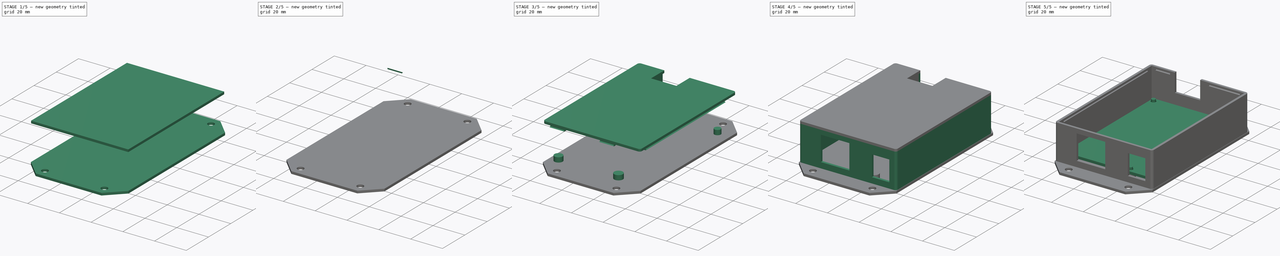
[diagram: build sequence overview — one tinted view per stage of 5, left to right]
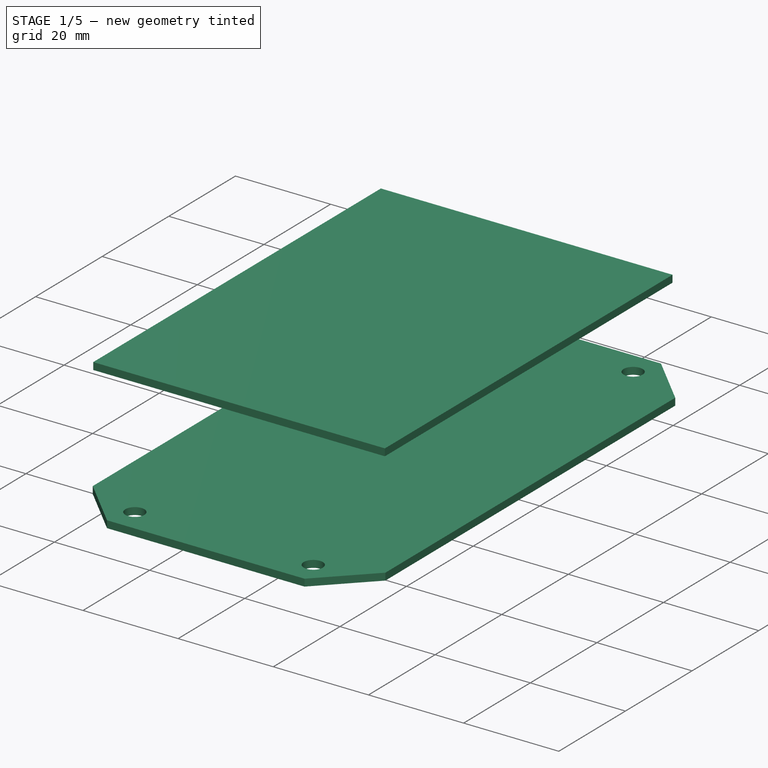
[diagram: stage 1 of 5 — iso view after this stage's code; geometry added in this stage tinted green]
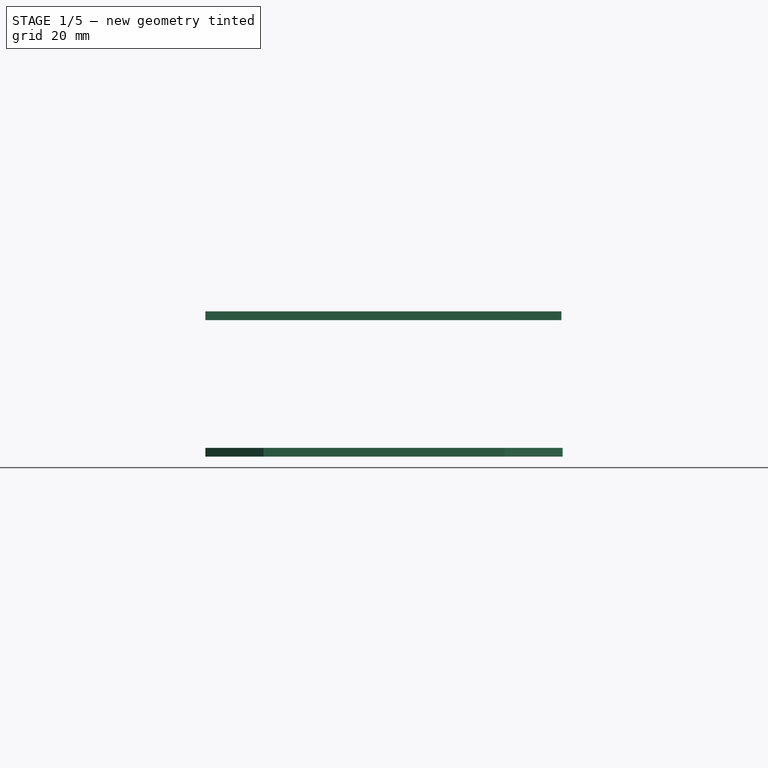
[diagram: stage 1 of 5 — front view after this stage's code; geometry added in this stage tinted green]
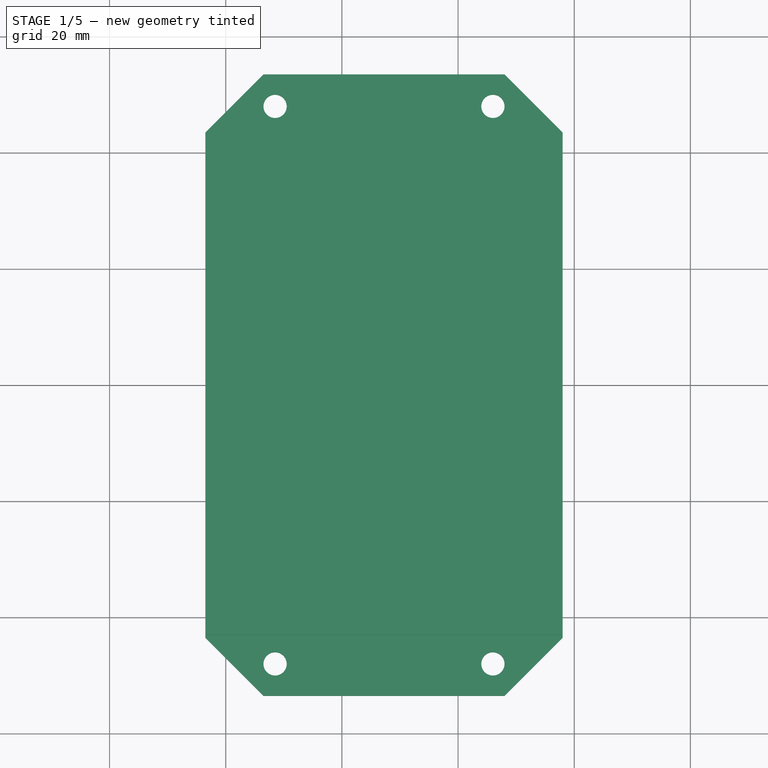
[diagram: stage 1 of 5 — top view after this stage's code; geometry added in this stage tinted green]
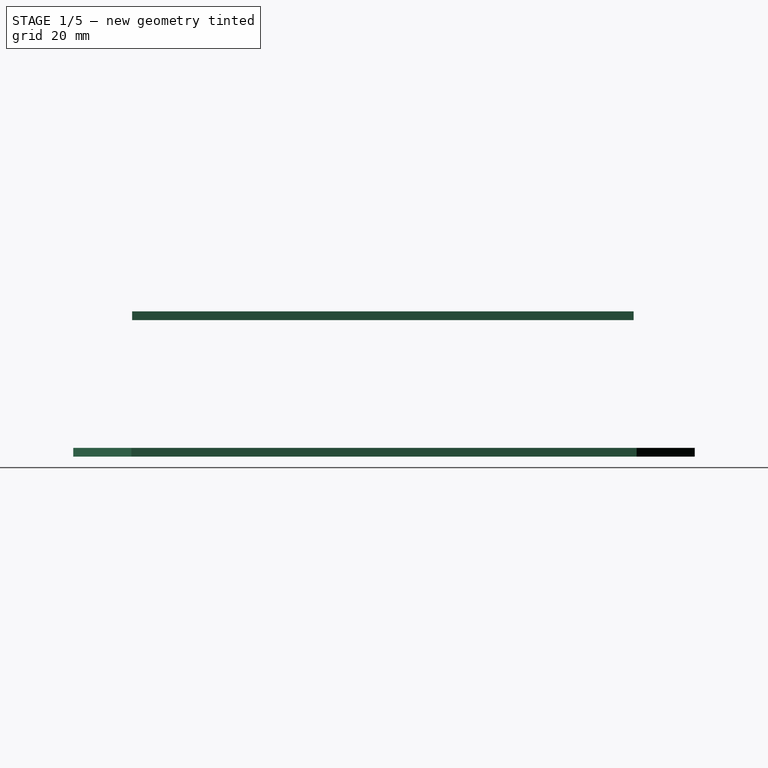
[diagram: stage 1 of 5 — right view after this stage's code; geometry added in this stage tinted green]
FCSTD DOCUMENT  (FreeCAD 0.16R4928 (Git))
Label: Notifier_RelayV1
License: CC-BY 3.0
LicenseURL: http://creativecommons.org/licenses/by/3.0/
objects: Sketcher::SketchObject×14, PartDesign::Pad×6, Part::Sweep×6, Part::Box×5, Part::MultiFuse×4, Part::Cut×3, PartDesign::Pocket×2, Part::Offset×2, App::DocumentObjectGroup×1, Part::Thickness×1, Part::Part2DObjectPython×1, PartDesign::Fillet×1, PartDesign::Chamfer×1
note: 54 computed .brp shape members not serialized (recipe doc carries the construction recipe); baked Part::Feature solids carry a one-line shape summary decoded from their .brp

FEATURE [Sketcher::SketchObject] Sketch001
  sketch-geometry (4):
    g0: LineSegment StartX=-2 StartY=-1.85263 StartZ=0 EndX=56.2937 EndY=-1.85263 EndZ=0
    g1: LineSegment StartX=56.2937 StartY=-1.85263 StartZ=0 EndX=56.2937 EndY=81.4827 EndZ=0
    g2: LineSegment StartX=56.2937 StartY=81.4827 StartZ=0 EndX=-2 EndY=81.4827 EndZ=0
    g3: LineSegment StartX=-2 StartY=81.4827 StartZ=0 EndX=-2 EndY=-1.85263 EndZ=0
  constraints (9):
    c: Coincident(g0,g1)
    c: Coincident(g1,g2)
    c: Coincident(g2,g3)
    c: Coincident(g3,g0)
    c: Horizontal(g0)
    c: Horizontal(g2)
    c: Vertical(g1)
    c: Vertical(g3)
    c: Distance(g-1,g3) = 2
FEATURE [PartDesign::Pad] Pad
  Length = 22
  Length2 = 100
  Sketch = -> Sketch001
  Type = 0
FEATURE [Part::Thickness] Thickness
  Faces = -> Pad [Face6]
  Intersection = false
  Join = 0
  Mode = 0
  SelfIntersection = false
  Value = 1.5
FEATURE [Sketcher::SketchObject] Sketch002
  ExternalGeometry = -> [Thickness]
  Placement = pos=(0,0,22) rot=(0,0,1;0rad)
  Support = -> Thickness [Face6]
  sketch-geometry (4):
    g0: LineSegment StartX=-3.5 StartY=82.9827 StartZ=0 EndX=57.7937 EndY=82.9827 EndZ=0
    g1: LineSegment StartX=57.7937 StartY=82.9827 StartZ=0 EndX=57.7937 EndY=-3.35263 EndZ=0
    g2: LineSegment StartX=57.7937 StartY=-3.35263 StartZ=0 EndX=-3.5 EndY=-3.35263 EndZ=0
    g3: LineSegment StartX=-3.5 StartY=-3.35263 StartZ=0 EndX=-3.5 EndY=82.9827 EndZ=0
  constraints (12):
    c: Coincident(g0,g1)
    c: Coincident(g1,g2)
    c: Coincident(g2,g3)
    c: Coincident(g3,g0)
    c: Horizontal(g0)
    c: Horizontal(g2)
    c: Vertical(g1)
    c: Vertical(g3)
    c: DistanceY(g0,g-3) = 0
    c: DistanceY(g1,g-5) = 0
    c: DistanceX(g2,g-6) = 0
    c: DistanceX(g0,g-4) = 0
FEATURE [Part::Part2DObjectPython] Clone2D  label="Clone of Sketch002 (2D)"  # Draft 2D object (typed FeaturePython)
  Objects = -> [Sketch002]
  Placement = pos=(0,0,22) rot=(0,0,1;0rad)
  Scale = (1,1,1)
FEATURE [PartDesign::Pad] Pad001
  Length = 1.5
  Length2 = 100
  Placement = pos=(0,0,22) rot=(0,0,1;0rad)
  Sketch = -> Clone2D
  Type = 0
FEATURE [Part::Box] Box004  label="Cube"
  Height = 1.5
  Length = 61.5
  Placement = pos=(-3.5,-13.5,-1.5) rot=(0,0,1;0rad)
  Width = 107
FEATURE [PartDesign::Chamfer] Chamfer
  Base = -> Box004 [Edge1,Edge3,Edge7,Edge5]
  Placement = pos=(-3.5,-13.5,-1.5) rot=(0,0,1;0rad)
  Size = 10
FEATURE [Sketcher::SketchObject] Sketch013
  ExternalGeometry = -> [Chamfer]
  Placement = pos=(-3.5,-13.5,0) rot=(0,0,1;0rad)
  Support = -> Chamfer [Face2]
  sketch-geometry (4):
    g0: Circle CenterX=12 CenterY=101.5 CenterZ=0 NormalX=0 NormalY=0 NormalZ=1 Radius=2
    g1: Circle CenterX=49.5 CenterY=101.5 CenterZ=0 NormalX=0 NormalY=0 NormalZ=1 Radius=2
    g2: Circle CenterX=12 CenterY=5.5 CenterZ=0 NormalX=0 NormalY=0 NormalZ=1 Radius=2
    g3: Circle CenterX=49.5 CenterY=5.5 CenterZ=0 NormalX=0 NormalY=0 NormalZ=1 Radius=2
  constraints (12):
    c: Radius(g2) = 2
    c: Equal(g2,g3)
    c: Equal(g3,g1)
    c: Equal(g1,g0)
    c: DistanceX(g-5,g0) = 2
    c: DistanceY(g0,g-5) = 5.5
    c: DistanceX(g1,g-5) = 2
    c: DistanceY(g1,g-5) = 5.5
    c: DistanceY(g2,g-3) = -5.5
    c: DistanceX(g2,g-3) = -2
    c: DistanceX(g3,g-4) = 2
    c: DistanceY(g3,g-4) = -5.5
FEATURE [PartDesign::Pocket] Pocket001
  Length = 5
  Placement = pos=(-3.5,-13.5,-1.5) rot=(0,0,1;0rad)
  Sketch = -> Sketch013
  Type = 0
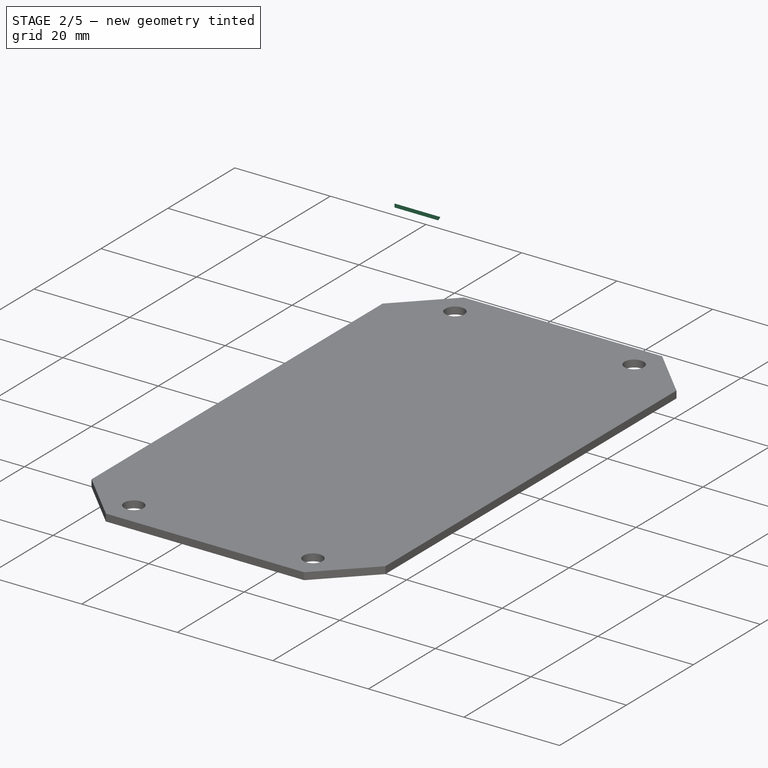
[diagram: stage 2 of 5 — iso view after this stage's code; geometry added in this stage tinted green]
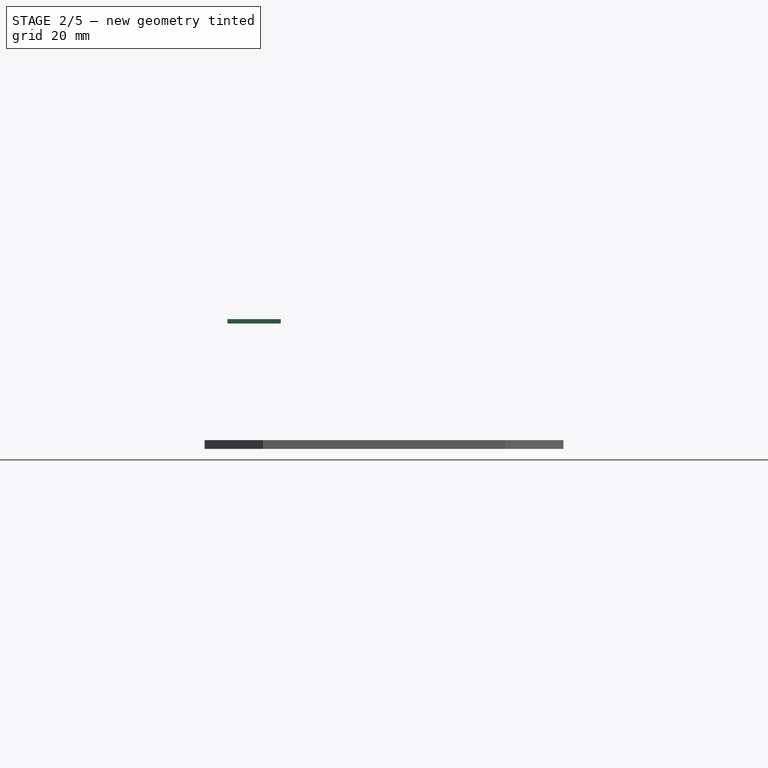
[diagram: stage 2 of 5 — front view after this stage's code; geometry added in this stage tinted green]
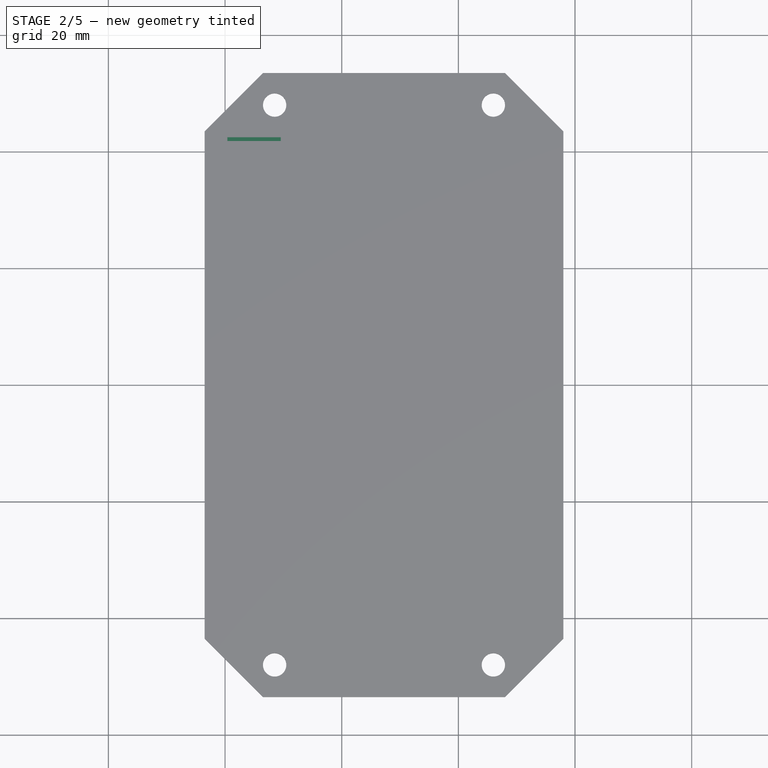
[diagram: stage 2 of 5 — top view after this stage's code; geometry added in this stage tinted green]
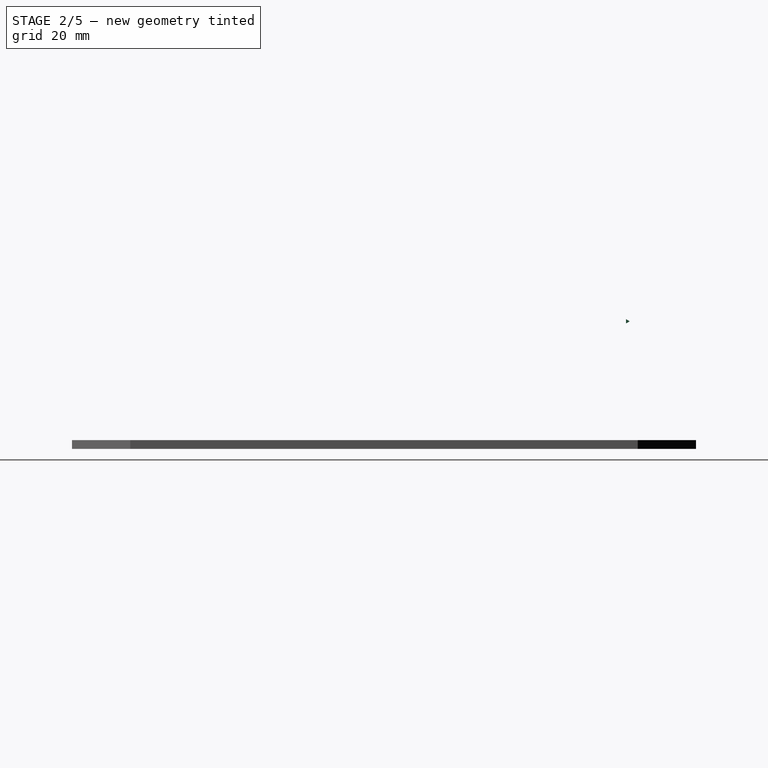
[diagram: stage 2 of 5 — right view after this stage's code; geometry added in this stage tinted green]
FEATURE [Part::Box] Box  label="Relay"
  Height = 15
  Length = 16
  Placement = pos=(12.5,71,10.5) rot=(0,0,1;0rad)
  Width = 15
FEATURE [PartDesign::Fillet] Fillet
  Base = -> Pad001 [Edge5,Edge8,Edge1,Edge2]
  Placement = pos=(0,0,22) rot=(0,0,1;0rad)
  Radius = 1.5
FEATURE [Part::Cut] Cut
  Base = -> Fillet
  Tool = -> Box
FEATURE [Sketcher::SketchObject] Sketch003
  ExternalGeometry = -> [Cut]
  Placement = pos=(0,0,22) rot=(1,0,0;3.14159rad)
  Support = -> Cut [Face2]
  sketch-geometry (8):
    g0: LineSegment StartX=12.5 StartY=-81.4827 StartZ=0 EndX=11 EndY=-81.4827 EndZ=0
    g1: LineSegment StartX=11 StartY=-81.4827 StartZ=0 EndX=11 EndY=-69.5 EndZ=0
    g2: LineSegment StartX=11 StartY=-69.5 StartZ=0 EndX=30 EndY=-69.5 EndZ=0
    g3: LineSegment StartX=30 StartY=-69.5 StartZ=0 EndX=30 EndY=-81.4827 EndZ=0
    g4: LineSegment StartX=30 StartY=-81.4827 StartZ=0 EndX=28.5 EndY=-81.4827 EndZ=0
    g5: LineSegment StartX=28.5 StartY=-81.4827 StartZ=0 EndX=28.5 EndY=-71 EndZ=0
    g6: LineSegment StartX=28.5 StartY=-71 StartZ=0 EndX=12.5 EndY=-71 EndZ=0
    g7: LineSegment StartX=12.5 StartY=-71 StartZ=0 EndX=12.5 EndY=-81.4827 EndZ=0
  constraints (23):
    c: Coincident(g0,g1)
    c: Coincident(g1,g2)
    c: Horizontal(g2)
    c: Coincident(g2,g3)
    c: Coincident(g3,g4)
    c: Coincident(g4,g5)
    c: Vertical(g5)
    c: Coincident(g5,g6)
    c: Horizontal(g6)
    c: Coincident(g6,g7)
    c: Coincident(g7,g0)
    c: Horizontal(g0)
    c: Horizontal(g4)
    c: Vertical(g1)
    c: Vertical(g7)
    c: Vertical(g3)
    c: Coincident(g5,g-5)
    c: Coincident(g6,g-4)
    c: DistanceX(g1,g6) = 1.5
    c: DistanceX(g2,g5) = -1.5
    c: DistanceY(g1,g6) = -1.5
    c: DistanceY(g0,g-6) = -1.5
    c: DistanceY(g4,g-7) = -1.5
FEATURE [PartDesign::Pad] Pad002  label="Lid"
  Length = 10
  Length2 = 100
  Sketch = -> Sketch003
  Type = 0
FEATURE [Sketcher::SketchObject] Sketch006
  ExternalGeometry = -> [Pad002]
  Placement = pos=(0,0,22) rot=(1,0,0;3.14159rad)
  Support = -> Pad002 [Face7]
  sketch-geometry (24):
    g0: LineSegment StartX=-2 StartY=-2.42337 StartZ=0 EndX=-0.5 EndY=-2.42337 EndZ=0
    g1: LineSegment StartX=-0.5 StartY=-2.42337 StartZ=0 EndX=-0.5 EndY=-78.1751 EndZ=0
    g2: LineSegment StartX=-0.5 StartY=-78.1751 StartZ=0 EndX=-2 EndY=-78.1751 EndZ=0
    g3: LineSegment StartX=-2 StartY=-78.1751 StartZ=0 EndX=-2 EndY=-2.42337 EndZ=0
    g4: LineSegment StartX=54.7937 StartY=-3.4831 StartZ=0 EndX=56.2937 EndY=-3.4831 EndZ=0
    g5: LineSegment StartX=56.2937 StartY=-3.4831 StartZ=0 EndX=56.2937 EndY=-74.6724 EndZ=0
    g6: LineSegment StartX=56.2937 StartY=-74.6724 StartZ=0 EndX=54.7937 EndY=-74.6724 EndZ=0
    g7: LineSegment StartX=54.7937 StartY=-74.6724 StartZ=0 EndX=54.7937 EndY=-3.4831 EndZ=0
    g8: LineSegment StartX=-0.008045 StartY=0.352633 StartZ=0 EndX=8.87508 EndY=0.352633 EndZ=0
    g9: LineSegment StartX=8.87508 StartY=0.352633 StartZ=0 EndX=8.87508 EndY=1.85263 EndZ=0
    g10: LineSegment StartX=8.87508 StartY=1.85263 StartZ=0 EndX=-0.008045 EndY=1.85263 EndZ=0
    g11: LineSegment StartX=-0.008045 StartY=1.85263 StartZ=0 EndX=-0.008045 EndY=0.352633 EndZ=0
    g12: LineSegment StartX=31.311 StartY=1.85263 StartZ=0 EndX=40.2021 EndY=1.85263 EndZ=0
    g13: LineSegment StartX=40.2021 StartY=1.85263 StartZ=0 EndX=40.2021 EndY=0.352633 EndZ=0
    g14: LineSegment StartX=40.2021 StartY=0.352633 StartZ=0 EndX=31.311 EndY=0.352633 EndZ=0
    g15: LineSegment StartX=31.311 StartY=0.352633 StartZ=0 EndX=31.311 EndY=1.85263 EndZ=0
    g16: LineSegment StartX=33.9258 StartY=-81.4827 StartZ=0 EndX=53.4522 EndY=-81.4827 EndZ=0
    g17: LineSegment StartX=53.4522 StartY=-81.4827 StartZ=0 EndX=53.4522 EndY=-79.9827 EndZ=0
    g18: LineSegment StartX=53.4522 StartY=-79.9827 StartZ=0 EndX=33.9258 EndY=-79.9827 EndZ=0
    g19: LineSegment StartX=33.9258 StartY=-79.9827 StartZ=0 EndX=33.9258 EndY=-81.4827 EndZ=0
    g20: LineSegment StartX=0.401153 StartY=-81.4827 StartZ=0 EndX=9.54535 EndY=-81.4827 EndZ=0
    g21: LineSegment StartX=9.54535 StartY=-81.4827 StartZ=0 EndX=9.54535 EndY=-79.9827 EndZ=0
    g22: LineSegment StartX=9.54535 StartY=-79.9827 StartZ=0 EndX=0.401153 EndY=-79.9827 EndZ=0
    g23: LineSegment StartX=0.401153 StartY=-79.9827 StartZ=0 EndX=0.401153 EndY=-81.4827 EndZ=0
  constraints (61):
    c: Coincident(g0,g1)
    c: Coincident(g1,g2)
    c: Coincident(g2,g3)
    c: Coincident(g3,g0)
    c: Horizontal(g0)
    c: Horizontal(g2)
    c: Vertical(g1)
    c: Vertical(g3)
    c: Coincident(g4,g5)
    c: Coincident(g5,g6)
    c: Coincident(g6,g7)
    c: Coincident(g7,g4)
    c: Horizontal(g4)
    c: Horizontal(g6)
    c: Vertical(g5)
    c: Vertical(g7)
    c: Coincident(g8,g9)
    c: Coincident(g9,g10)
    c: Coincident(g10,g11)
    c: Coincident(g11,g8)
    c: Horizontal(g8)
    c: Horizontal(g10)
    c: Vertical(g9)
    c: Vertical(g11)
    c: Coincident(g12,g13)
    c: Coincident(g13,g14)
    c: Coincident(g14,g15)
    c: Coincident(g15,g12)
    c: Horizontal(g12)
    c: Horizontal(g14)
    c: Vertical(g13)
    c: Vertical(g15)
    c: Coincident(g16,g17)
    c: Coincident(g17,g18)
    c: Coincident(g18,g19)
    c: Coincident(g19,g16)
    c: Horizontal(g16)
    c: Horizontal(g18)
    c: Vertical(g17)
    c: Vertical(g19)
    c: Coincident(g20,g21)
    c: Coincident(g21,g22)
    c: Coincident(g22,g23)
    c: Coincident(g23,g20)
    c: Horizontal(g20)
    c: Horizontal(g22)
    c: Vertical(g21)
    c: Vertical(g23)
    c: DistanceX(g2,g1) = 1.5
    c: Equal(g6,g2)
    c: DistanceY(g23) = -1.5
    c: Equal(g0,g19)
    c: Equal(g19,g23)
    c: Equal(g23,g11)
    c: Equal(g11,g15)
    c: DistanceY(g10,g-3) = 1.5
    c: DistanceY(g12,g-3) = 1.5
    c: DistanceX(g0,g-7) = -1.5
    c: DistanceX(g4,g-4) = 1.5
    c: DistanceY(g20,g-6) = -1.5
    c: DistanceY(g16,g-5) = -1.5
FEATURE [PartDesign::Pad] Pad005
  Length = 2
  Length2 = 100
  Sketch = -> Sketch006
  Type = 0
FEATURE [Sketcher::SketchObject] Sketch012
  ExternalGeometry = -> [Pad005]
  Placement = pos=(0.401153,0,0) rot=(0.57735,-0.57735,-0.57735;2.0944rad)
  Support = -> Pad005 [Face21]
  sketch-geometry (4):
    g0: LineSegment StartX=-82.1322 StartY=20.375 StartZ=0 EndX=-81.4827 EndY=20 EndZ=0
    g1: LineSegment StartX=-81.4827 StartY=20 StartZ=0 EndX=-81.4827 EndY=20.75 EndZ=0
    g2: LineSegment StartX=-81.4827 StartY=20.75 StartZ=0 EndX=-82.1322 EndY=20.375 EndZ=0
    g3: Circle [constr] CenterX=-81.6992 CenterY=20.375 CenterZ=0 NormalX=0 NormalY=0 NormalZ=1 Radius=0.433013
  constraints (11):
    c: Coincident(g0,g1)
    c: Coincident(g1,g2)
    c: Coincident(g2,g0)
    c: Equal(g0,g1)
    c: Equal(g0,g2)
    c: PointOnObject(g0,g3)
    c: PointOnObject(g1,g3)
    c: PointOnObject(g2,g3)
    c: Vertical(g1)
    c: DistanceY(g1,g0) = -0.75
    c: Coincident(g0,g-3)
FEATURE [Part::Sweep] Sweep005
  Frenet = false
  Sections = -> [Sketch012]
  Solid = true
  Spine = -> Pad005 [Edge88]
  Transition = 1
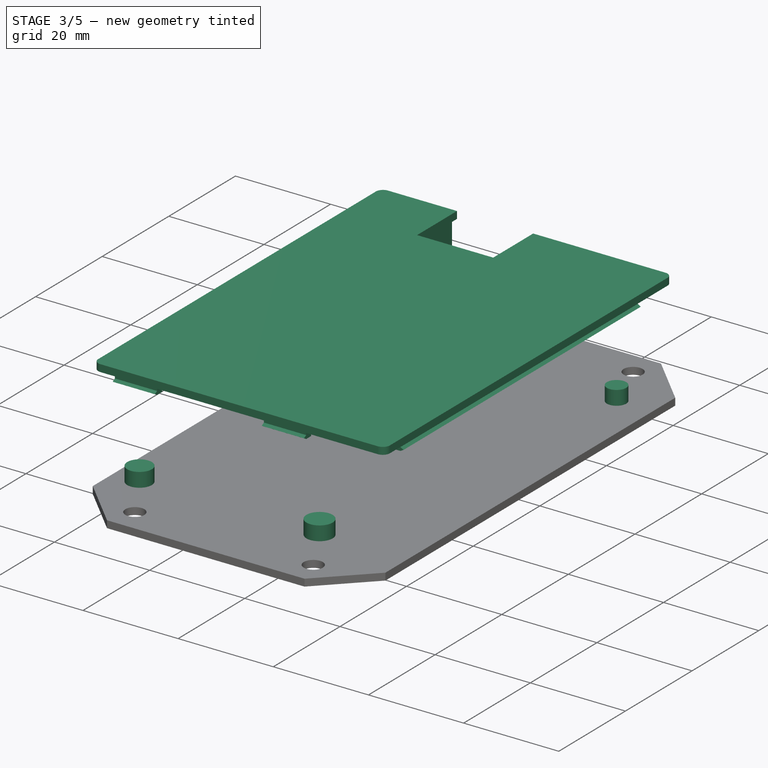
[diagram: stage 3 of 5 — iso view after this stage's code; geometry added in this stage tinted green]
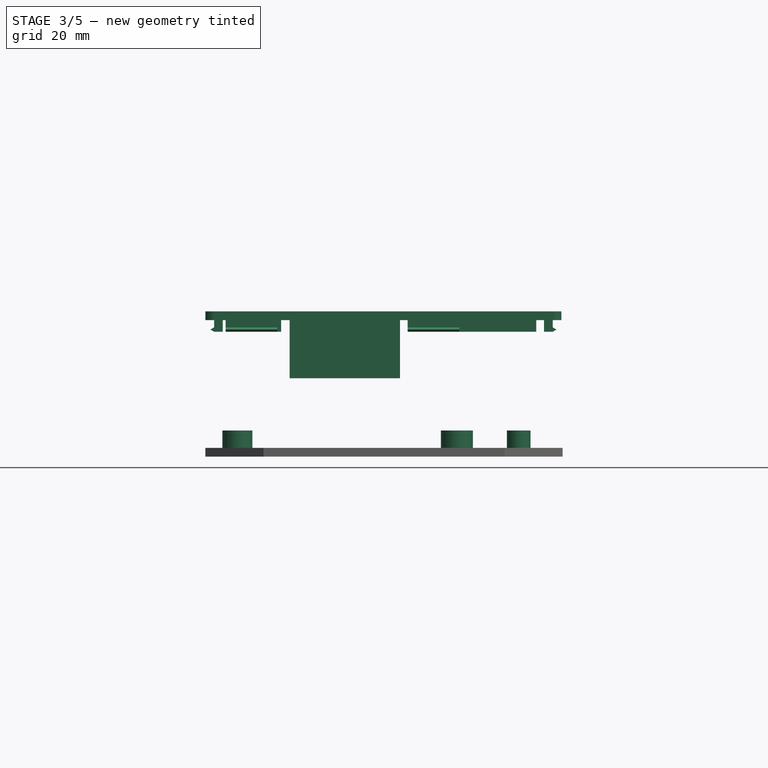
[diagram: stage 3 of 5 — front view after this stage's code; geometry added in this stage tinted green]
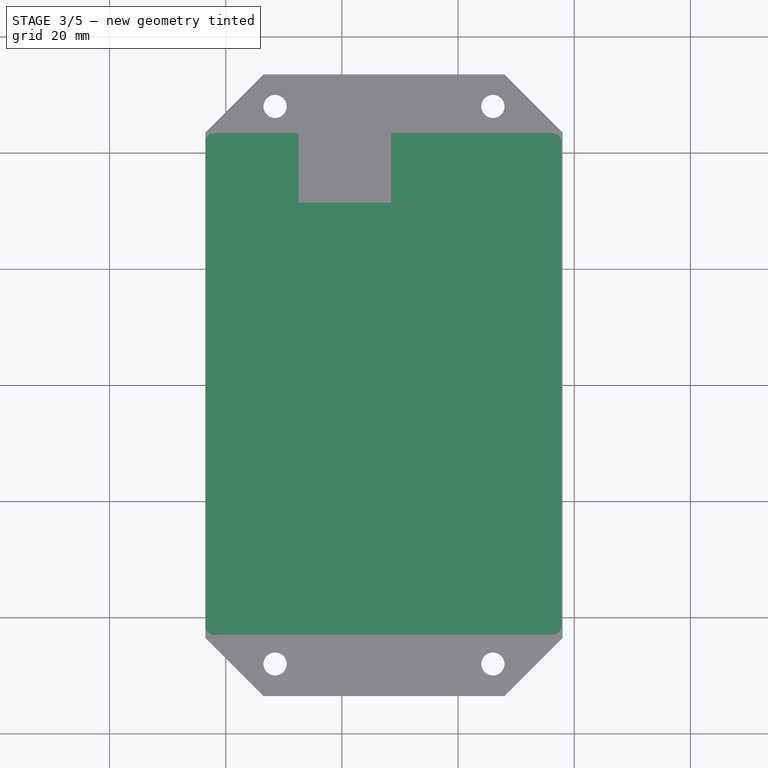
[diagram: stage 3 of 5 — top view after this stage's code; geometry added in this stage tinted green]
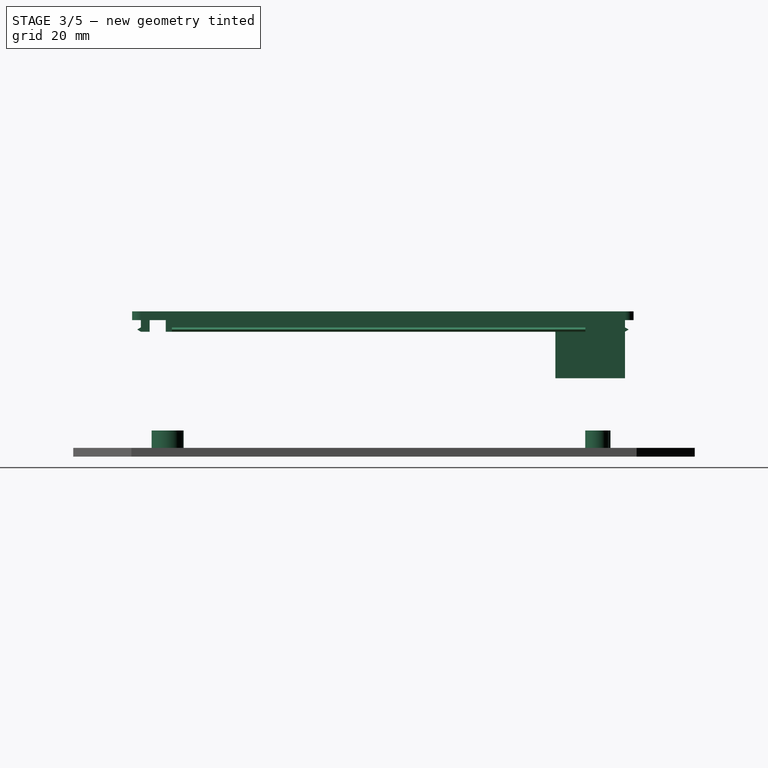
[diagram: stage 3 of 5 — right view after this stage's code; geometry added in this stage tinted green]
FEATURE [Sketcher::SketchObject] Sketch004
  sketch-geometry (4):
    g0: Circle CenterX=2.0065 CenterY=2.67605 CenterZ=0 NormalX=0 NormalY=0 NormalZ=1 Radius=2.58353
    g1: Circle CenterX=39.7918 CenterY=2.7434 CenterZ=0 NormalX=0 NormalY=0 NormalZ=1 Radius=2.75525
    g2: Circle CenterX=2.19951 CenterY=77.0886 CenterZ=0 NormalX=0 NormalY=0 NormalZ=1 Radius=1.89853
    g3: Circle CenterX=50.4323 CenterY=76.6887 CenterZ=0 NormalX=0 NormalY=0 NormalZ=1 Radius=2.0377
FEATURE [PartDesign::Pad] Pad003
  Length = 3
  Length2 = 100
  Sketch = -> Sketch004
  Type = 0
FEATURE [Sketcher::SketchObject] Sketch007
  ExternalGeometry = -> [Pad005]
  Placement = pos=(0,2.42337,0) rot=(1,0,0;1.5708rad)
  Support = -> Pad005 [Face41]
  sketch-geometry (4):
    g0: LineSegment StartX=-2 StartY=20 StartZ=0 EndX=-2 EndY=20.75 EndZ=0
    g1: LineSegment StartX=-2 StartY=20.75 StartZ=0 EndX=-2.64952 EndY=20.375 EndZ=0
    g2: LineSegment StartX=-2.64952 StartY=20.375 StartZ=0 EndX=-2 EndY=20 EndZ=0
    g3: Circle [constr] CenterX=-2.21651 CenterY=20.375 CenterZ=0 NormalX=0 NormalY=0 NormalZ=1 Radius=0.433013
  constraints (11):
    c: Coincident(g0,g1)
    c: Coincident(g1,g2)
    c: Coincident(g2,g0)
    c: Equal(g0,g1)
    c: Equal(g0,g2)
    c: PointOnObject(g0,g3)
    c: PointOnObject(g1,g3)
    c: PointOnObject(g2,g3)
    c: Vertical(g0)
    c: DistanceY(g0) = 0.75
    c: Coincident(g-3,g0)
FEATURE [Part::Sweep] Sweep
  Frenet = false
  Sections = -> [Sketch007]
  Solid = true
  Spine = -> Pad005 [Edge128]
  Transition = 1
FEATURE [Sketcher::SketchObject] Sketch008
  ExternalGeometry = -> [Pad005]
  Placement = pos=(0,3.4831,0) rot=(1,0,0;1.5708rad)
  Support = -> Pad005 [Face31]
  sketch-geometry (4):
    g0: LineSegment StartX=56.2937 StartY=20 StartZ=0 EndX=56.9432 EndY=20.375 EndZ=0
    g1: LineSegment StartX=56.9432 StartY=20.375 StartZ=0 EndX=56.2937 EndY=20.75 EndZ=0
    g2: LineSegment StartX=56.2937 StartY=20.75 StartZ=0 EndX=56.2937 EndY=20 EndZ=0
    g3: Circle [constr] CenterX=56.5102 CenterY=20.375 CenterZ=0 NormalX=0 NormalY=0 NormalZ=1 Radius=0.433013
  constraints (11):
    c: Coincident(g0,g1)
    c: Coincident(g1,g2)
    c: Coincident(g2,g0)
    c: Equal(g0,g1)
    c: Equal(g0,g2)
    c: PointOnObject(g0,g3)
    c: PointOnObject(g1,g3)
    c: PointOnObject(g2,g3)
    c: Vertical(g2)
    c: DistanceY(g0,g1) = 0.75
    c: Coincident(g-3,g0)
FEATURE [Part::Sweep] Sweep001
  Frenet = false
  Sections = -> [Sketch008]
  Solid = true
  Spine = -> Pad005 [Edge104]
  Transition = 1
FEATURE [Sketcher::SketchObject] Sketch009
  ExternalGeometry = -> [Pad005]
  Placement = pos=(40.2021,0,0) rot=(0.57735,0.57735,0.57735;2.0944rad)
  Support = -> Pad005 [Face40]
  sketch-geometry (4):
    g0: LineSegment StartX=-1.85263 StartY=20.75 StartZ=0 EndX=-2.50215 EndY=20.375 EndZ=0
    g1: LineSegment StartX=-2.50215 StartY=20.375 StartZ=0 EndX=-1.85263 EndY=20 EndZ=0
    g2: LineSegment StartX=-1.85263 StartY=20 StartZ=0 EndX=-1.85263 EndY=20.75 EndZ=0
    g3: Circle [constr] CenterX=-2.06914 CenterY=20.375 CenterZ=0 NormalX=0 NormalY=0 NormalZ=1 Radius=0.433013
  constraints (11):
    c: Coincident(g0,g1)
    c: Coincident(g1,g2)
    c: Coincident(g2,g0)
    c: Equal(g0,g1)
    c: Equal(g0,g2)
    c: PointOnObject(g0,g3)
    c: PointOnObject(g1,g3)
    c: PointOnObject(g2,g3)
    c: Vertical(g2)
    c: DistanceY(g0,g1) = -0.75
    c: Coincident(g1,g-3)
FEATURE [Part::Sweep] Sweep002
  Frenet = false
  Sections = -> [Sketch009]
  Solid = true
  Spine = -> Pad005 [Edge118]
  Transition = 1
FEATURE [Sketcher::SketchObject] Sketch010
  ExternalGeometry = -> [Pad005]
  Placement = pos=(8.87508,0,0) rot=(0.57735,0.57735,0.57735;2.0944rad)
  Support = -> Pad005 [Face36]
  sketch-geometry (4):
    g0: LineSegment StartX=-1.85263 StartY=20 StartZ=0 EndX=-1.85263 EndY=20.75 EndZ=0
    g1: LineSegment StartX=-1.85263 StartY=20.75 StartZ=0 EndX=-2.50215 EndY=20.375 EndZ=0
    g2: LineSegment StartX=-2.50215 StartY=20.375 StartZ=0 EndX=-1.85263 EndY=20 EndZ=0
    g3: Circle [constr] CenterX=-2.06914 CenterY=20.375 CenterZ=0 NormalX=0 NormalY=0 NormalZ=1 Radius=0.433013
  constraints (11):
    c: Coincident(g0,g1)
    c: Coincident(g1,g2)
    c: Coincident(g2,g0)
    c: Equal(g0,g1)
    c: Equal(g0,g2)
    c: PointOnObject(g0,g3)
    c: PointOnObject(g1,g3)
    c: PointOnObject(g2,g3)
    c: Vertical(g0)
    c: DistanceY(g0,g0) = 0.75
    c: Coincident(g-3,g0)
FEATURE [Part::Sweep] Sweep003
  Frenet = false
  Sections = -> [Sketch010]
  Solid = true
  Spine = -> Pad005 [Edge111]
  Transition = 1
FEATURE [Sketcher::SketchObject] Sketch011
  ExternalGeometry = -> [Pad005]
  Placement = pos=(53.4522,0,0) rot=(0.57735,0.57735,0.57735;2.0944rad)
  Support = -> Pad005 [Face26]
  sketch-geometry (4):
    g0: LineSegment StartX=82.1322 StartY=20.375 StartZ=0 EndX=81.4827 EndY=20.75 EndZ=0
    g1: LineSegment StartX=81.4827 StartY=20.75 StartZ=0 EndX=81.4827 EndY=20 EndZ=0
    g2: LineSegment StartX=81.4827 StartY=20 StartZ=0 EndX=82.1322 EndY=20.375 EndZ=0
    g3: Circle [constr] CenterX=81.6992 CenterY=20.375 CenterZ=0 NormalX=0 NormalY=0 NormalZ=1 Radius=0.433013
  constraints (11):
    c: Coincident(g0,g1)
    c: Coincident(g1,g2)
    c: Coincident(g2,g0)
    c: Equal(g0,g1)
    c: Equal(g0,g2)
    c: PointOnObject(g0,g3)
    c: PointOnObject(g1,g3)
    c: PointOnObject(g2,g3)
    c: Vertical(g1)
    c: Coincident(g-3,g1)
    c: DistanceY(g0,g1) = -0.75
FEATURE [Part::Sweep] Sweep004
  Frenet = false
  Sections = -> [Sketch011]
  Solid = true
  Spine = -> Pad005 [Edge95]
  Transition = 1
FEATURE [Part::MultiFuse] Fusion002  label="Final Lid"
  Shapes = -> [Pad005,Sweep001,Sweep005,Sweep004,Sweep,Sweep003,Sweep002]
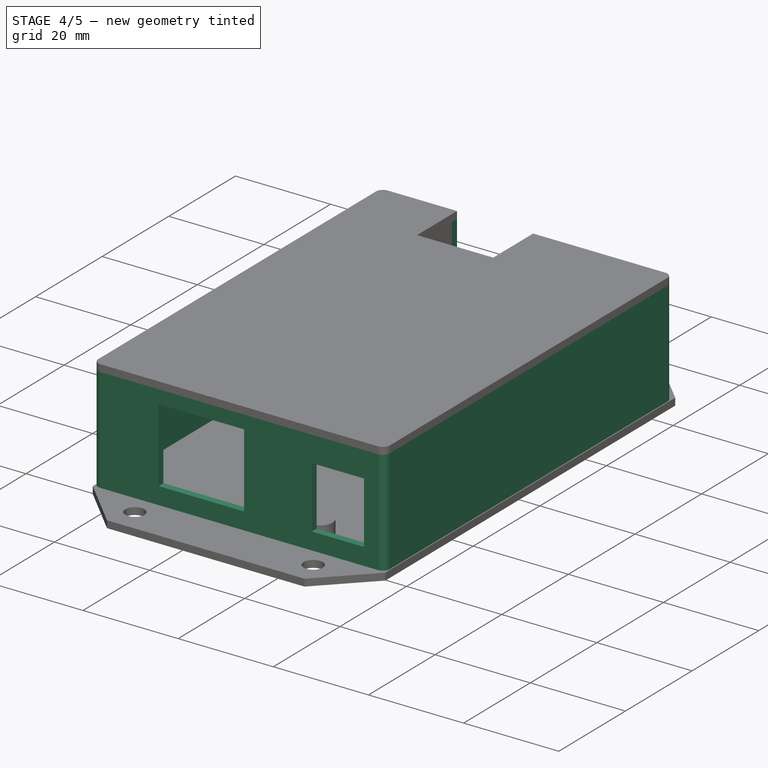
[diagram: stage 4 of 5 — iso view after this stage's code; geometry added in this stage tinted green]
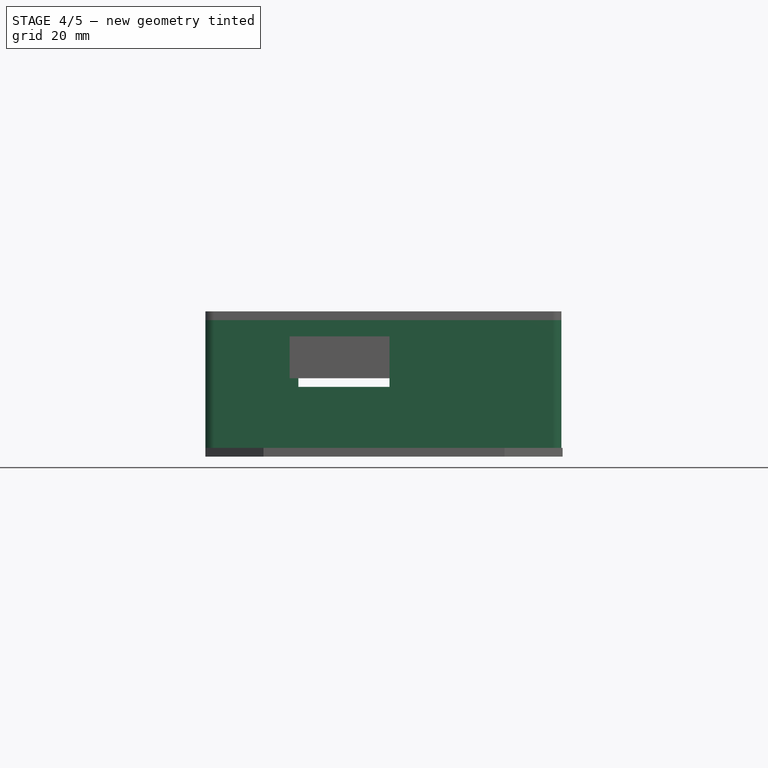
[diagram: stage 4 of 5 — front view after this stage's code; geometry added in this stage tinted green]
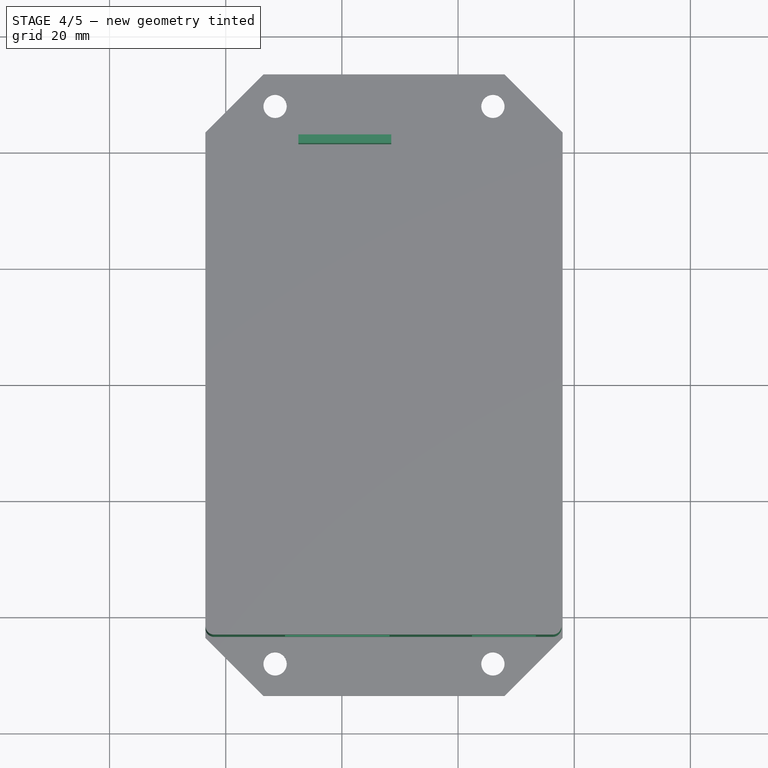
[diagram: stage 4 of 5 — top view after this stage's code; geometry added in this stage tinted green]
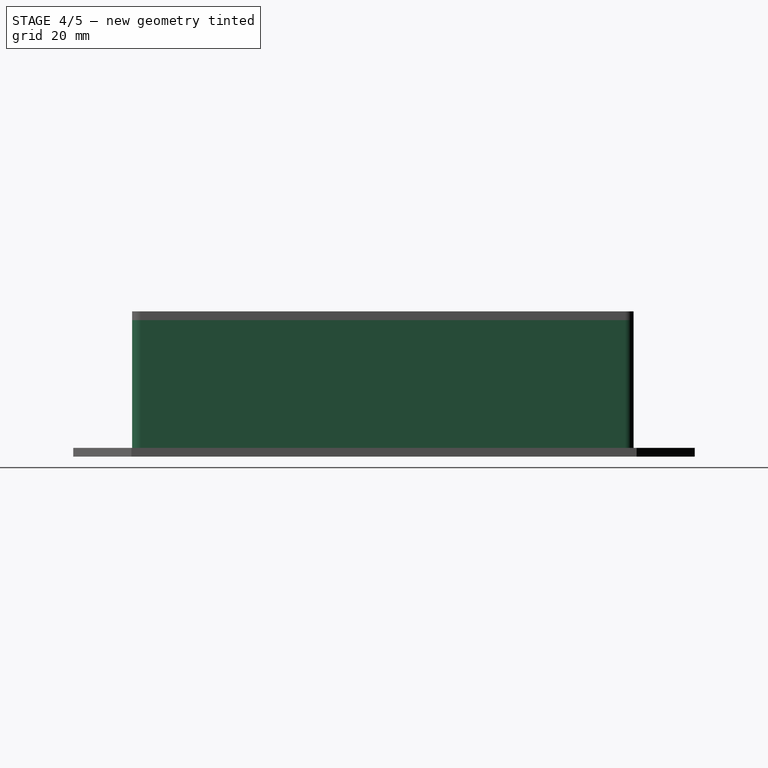
[diagram: stage 4 of 5 — right view after this stage's code; geometry added in this stage tinted green]
FEATURE [Part::Box] Box002  label="EthernetJack"
  Height = 13.6
  Length = 16
  Placement = pos=(11.2,-4.6,4.6) rot=(0,0,1;0rad)
  Width = 21
FEATURE [Part::Box] Box003  label="PowerJack"
  Height = 11
  Length = 9
  Placement = pos=(43.4,-4.5,4.6) rot=(0,0,1;0rad)
  Width = 14.5
FEATURE [App::DocumentObjectGroup] Group  label="iBoard"
  Group = -> [Box001,Box002,Box003,Pocket]
FEATURE [Part::Offset] Offset
  Fill = false
  Intersection = false
  Join = 2
  Mode = 0
  SelfIntersection = false
  Source = -> Box002
  Value = 1
FEATURE [Part::Offset] Offset001
  Fill = false
  Intersection = false
  Join = 2
  Mode = 0
  SelfIntersection = false
  Source = -> Box003
  Value = 1
FEATURE [Part::MultiFuse] Fusion
  Shapes = -> [Offset,Offset001,Box]
FEATURE [Part::Cut] Cut001
  Base = -> Thickness
  Tool = -> Fusion
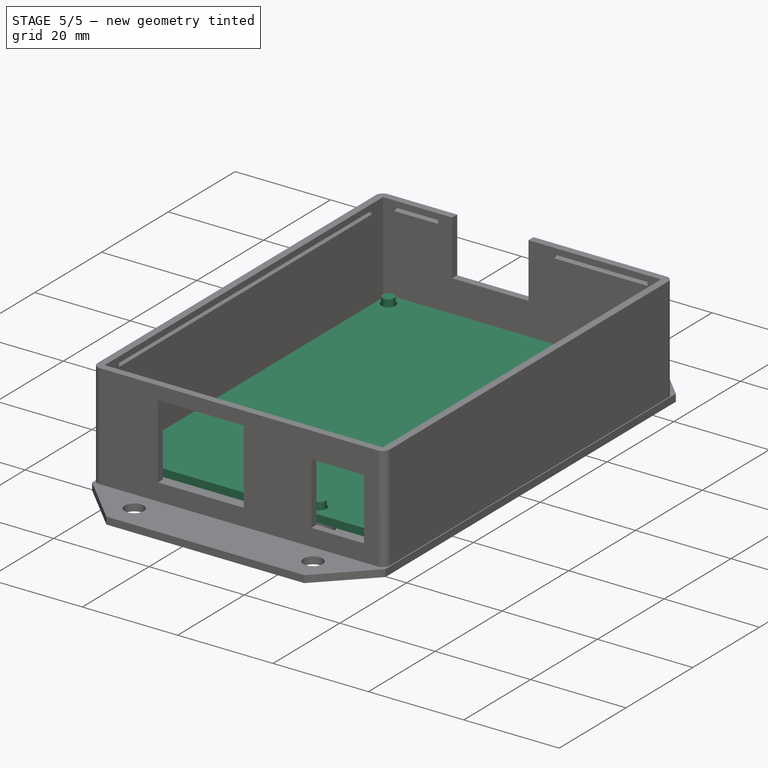
[diagram: stage 5 of 5 — iso view after this stage's code; geometry added in this stage tinted green]
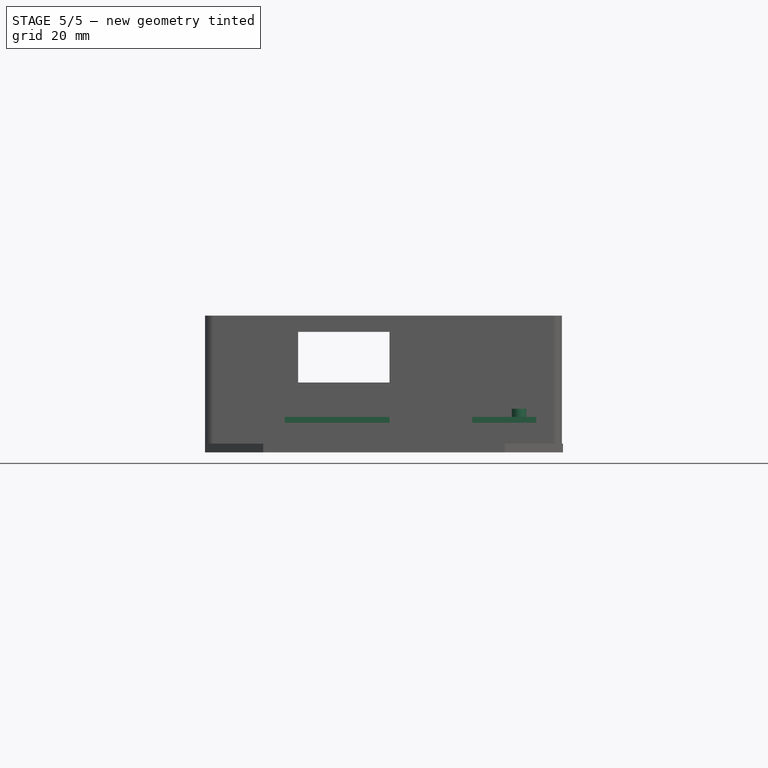
[diagram: stage 5 of 5 — front view after this stage's code; geometry added in this stage tinted green]
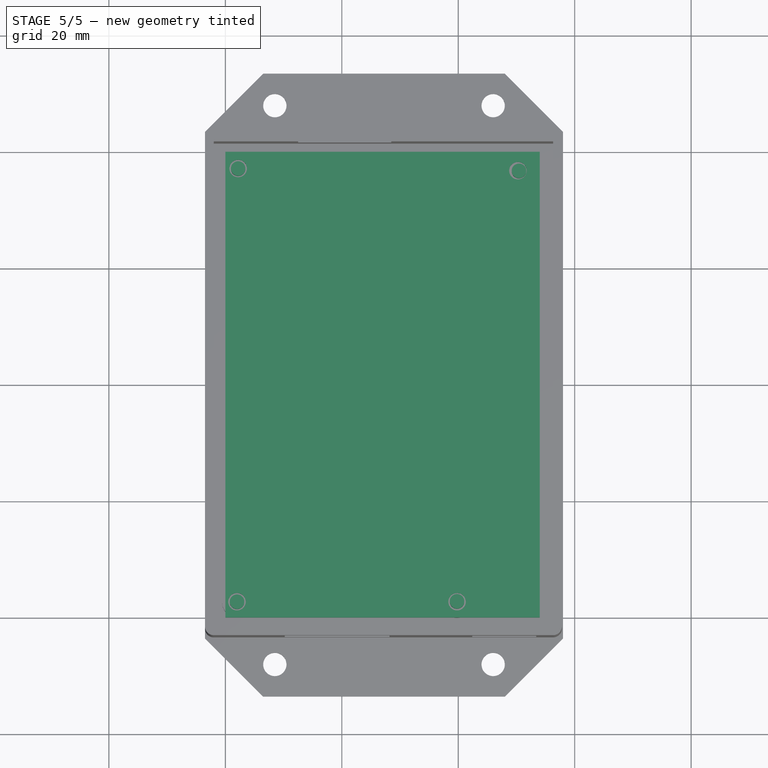
[diagram: stage 5 of 5 — top view after this stage's code; geometry added in this stage tinted green]
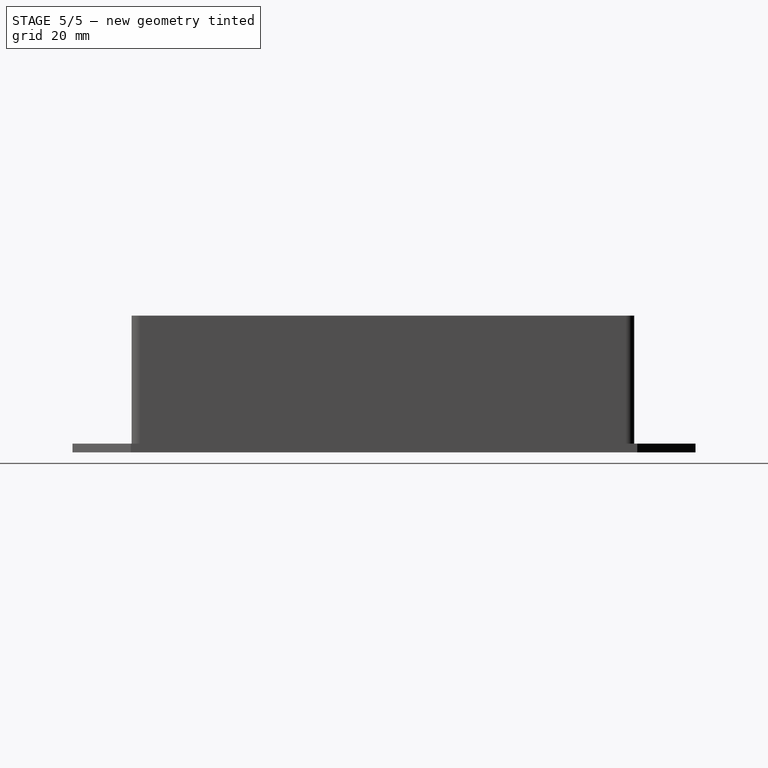
[diagram: stage 5 of 5 — right view after this stage's code; geometry added in this stage tinted green]
FEATURE [Part::Box] Box001  label="Base"
  Height = 1.6
  Length = 54
  Placement = pos=(0,0,3) rot=(0,0,1;0rad)
  Width = 80
FEATURE [Sketcher::SketchObject] Sketch
  ExternalGeometry = -> [Box001]
  Placement = pos=(0,0,4.6) rot=(0,0,1;0rad)
  Support = -> Box001 [Face6]
  sketch-geometry (6):
    g0: Circle CenterX=2.2 CenterY=77.12 CenterZ=0 NormalX=0 NormalY=0 NormalZ=1 Radius=1.5
    g1: Circle CenterX=50.25 CenterY=76.75 CenterZ=0 NormalX=0 NormalY=0 NormalZ=1 Radius=1.5
    g2: Circle CenterX=2 CenterY=2.7 CenterZ=0 NormalX=0 NormalY=0 NormalZ=1 Radius=1.5
    g3: Circle CenterX=39.8 CenterY=2.7 CenterZ=0 NormalX=0 NormalY=0 NormalZ=1 Radius=1.5
    g4: LineSegment [constr] StartX=0.5 StartY=1.2 StartZ=0 EndX=0.5 EndY=5.19188 EndZ=0
    g5: LineSegment [constr] StartX=0.5 StartY=1.2 StartZ=0 EndX=4.53205 EndY=1.2 EndZ=0
  constraints (17):
    c: Radius(g2) = 1.5
    c: Vertical(g4)
    c: Tangent(g4,g2)
    c: Horizontal(g5)
    c: Tangent(g5,g2)
    c: Coincident(g4,g5)
    c: DistanceX(g-1,g4) = 0.5
    c: DistanceY(g-1,g5) = 1.2
    c: Equal(g3,g2)
    c: DistanceY(g-1,g3) = 2.7
    c: DistanceX(g3,g-3) = 14.2
    c: Equal(g0,g1)
    c: Equal(g1,g2)
    c: DistanceY(g0,g-4) = 2.88
    c: DistanceX(g0,g-4) = -2.2
    c: DistanceX(g1,g-4) = 3.75
    c: DistanceY(g1,g-4) = 3.25
FEATURE [PartDesign::Pocket] Pocket  label="Holes"
  Length = 5
  Placement = pos=(0,0,3) rot=(0,0,1;0rad)
  Sketch = -> Sketch
  Type = 1
FEATURE [Part::MultiFuse] Fusion001
  Shapes = -> [Pad003,Cut001]
FEATURE [Sketcher::SketchObject] Sketch005
  ExternalGeometry = -> [Fusion001]
  Placement = pos=(0,0,3) rot=(0,0,1;0rad)
  Support = -> Fusion001 [Face24]
  sketch-geometry (4):
    g0: Circle CenterX=2.19951 CenterY=77.0886 CenterZ=0 NormalX=0 NormalY=0 NormalZ=1 Radius=1.25
    g1: Circle CenterX=50.4323 CenterY=76.6887 CenterZ=0 NormalX=0 NormalY=0 NormalZ=1 Radius=1.25
    g2: Circle CenterX=2.0065 CenterY=2.67605 CenterZ=0 NormalX=0 NormalY=0 NormalZ=1 Radius=1.25
    g3: Circle CenterX=39.7918 CenterY=2.7434 CenterZ=0 NormalX=0 NormalY=0 NormalZ=1 Radius=1.25
  constraints (8):
    c: Coincident(g0,g-6)
    c: Coincident(g1,g-5)
    c: Coincident(g2,g-3)
    c: Coincident(g3,g-4)
    c: Radius(g3) = 1.25
    c: Equal(g3,g2)
    c: Equal(g3,g0)
    c: Equal(g3,g1)
FEATURE [PartDesign::Pad] Pad004
  Length = 3
  Length2 = 100
  Sketch = -> Sketch005
  Type = 0
FEATURE [Part::Cut] Cut002  label="Base001"
  Base = -> Pad004
  Tool = -> Fusion002
FEATURE [Part::MultiFuse] Fusion003  label="Base Final"
  Shapes = -> [Cut002,Pocket001]
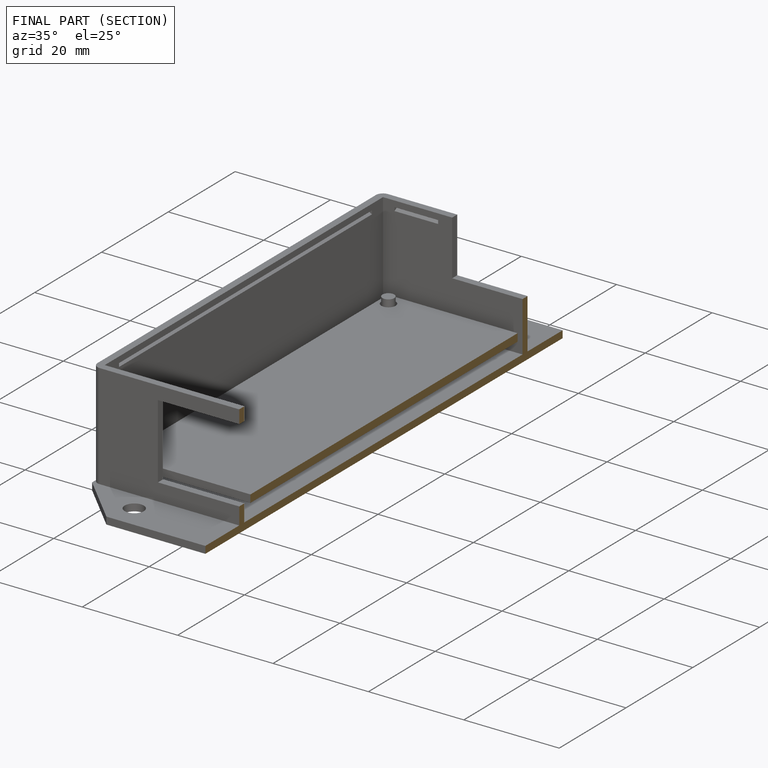
[diagram: finished part — half-section view (interior)]
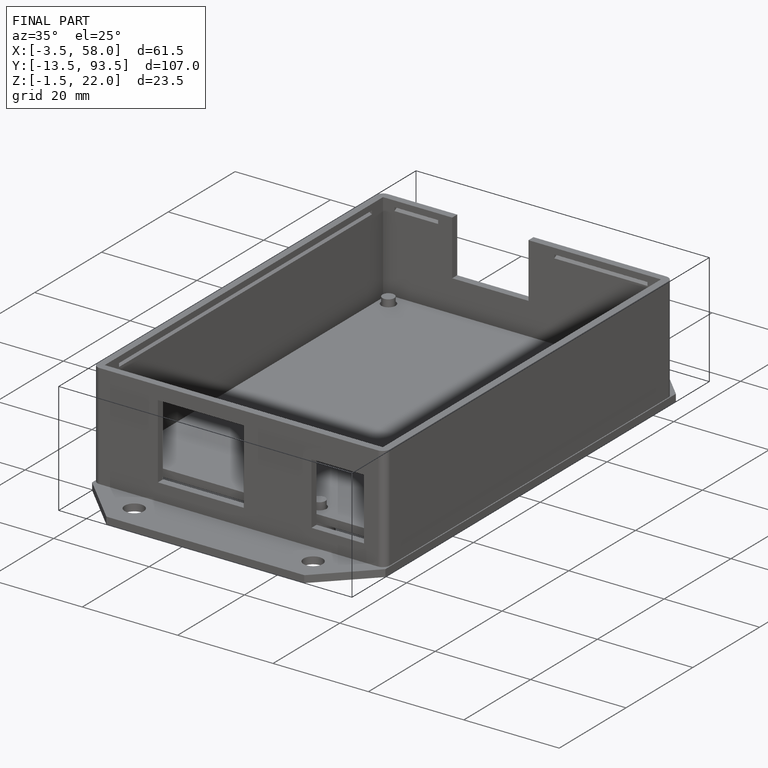
[diagram: finished part — iso view with bounding-box wireframe]
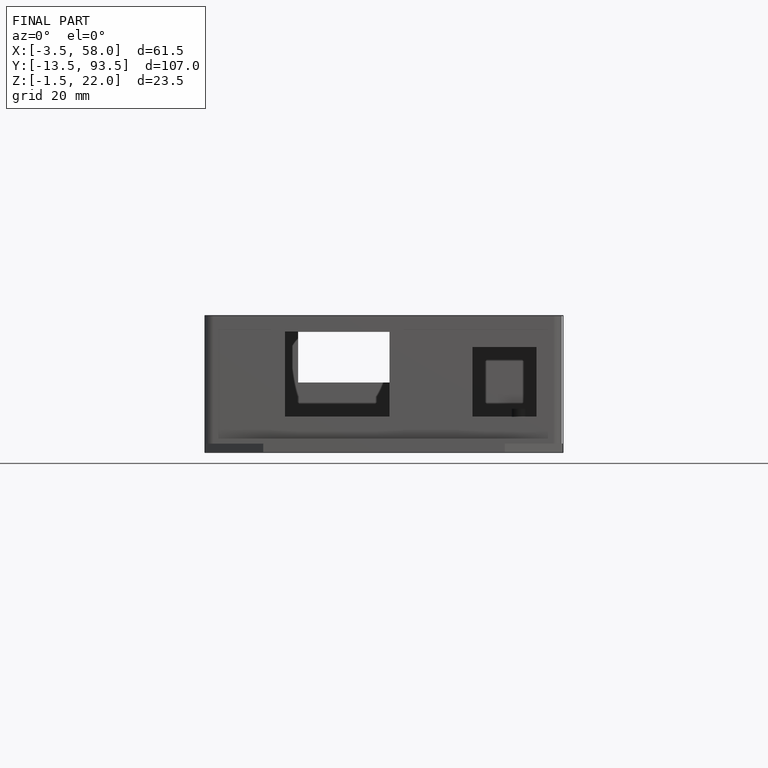
[diagram: finished part — front view with bounding-box wireframe]
